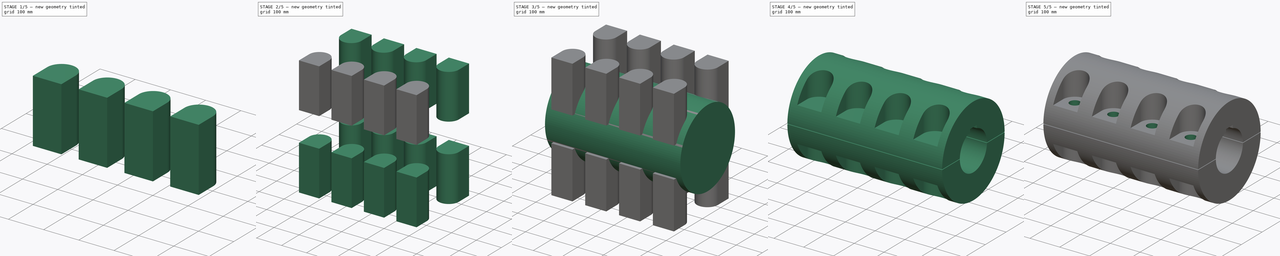
[diagram: build sequence overview — one tinted view per stage of 5, left to right]
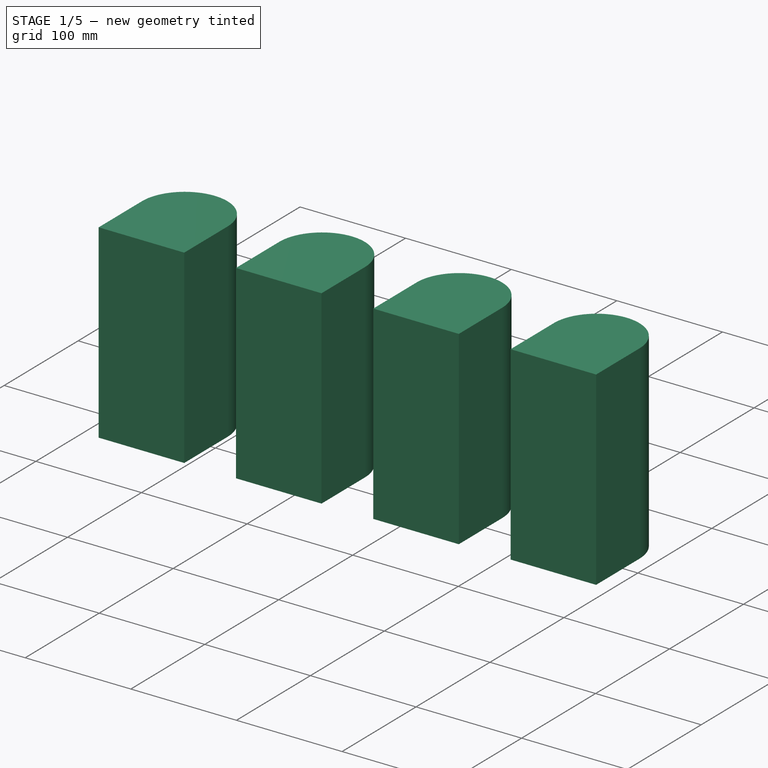
[diagram: stage 1 of 5 — iso view after this stage's code; geometry added in this stage tinted green]
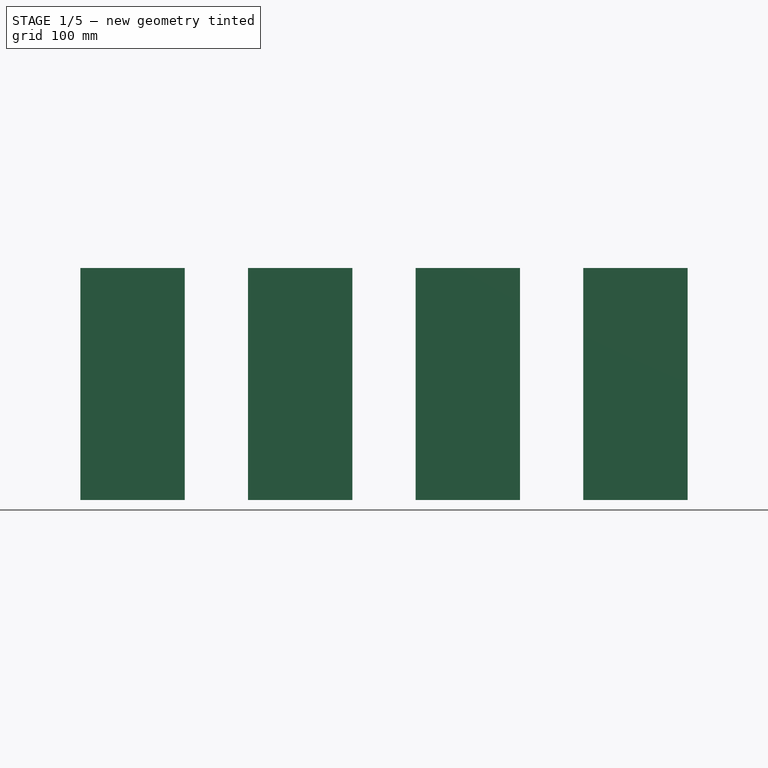
[diagram: stage 1 of 5 — front view after this stage's code; geometry added in this stage tinted green]
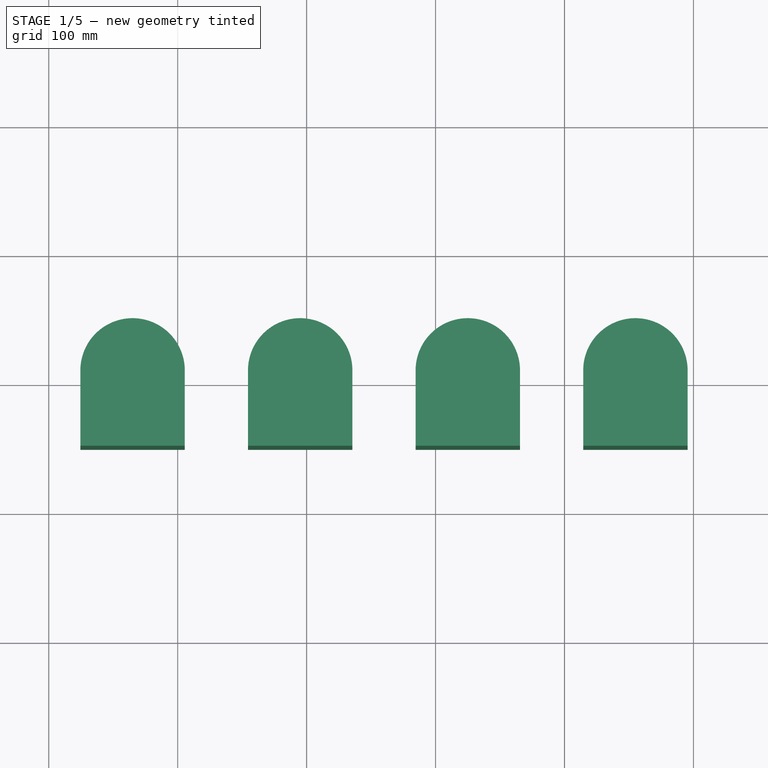
[diagram: stage 1 of 5 — top view after this stage's code; geometry added in this stage tinted green]
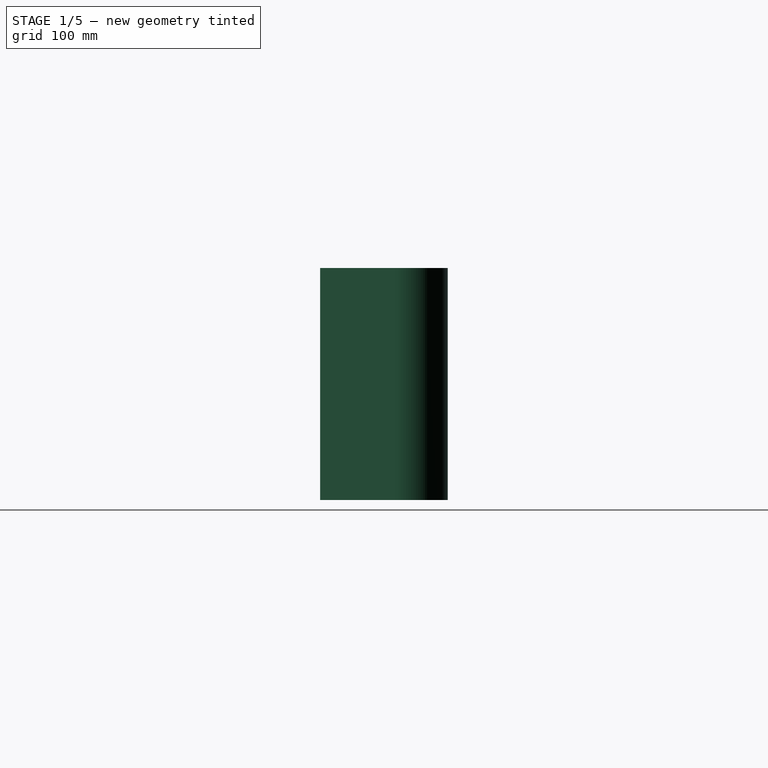
[diagram: stage 1 of 5 — right view after this stage's code; geometry added in this stage tinted green]
FCSTD DOCUMENT  (FreeCAD 0.21R33771 (Git))
Label: 筒形軸継手
License: All rights reserved
objects: Part::FeaturePython×4, Part::Extrusion×4, Part::Cut×4, Sketcher::SketchObject×3, Part::Mirroring×2, Part::MultiFuse×2, Spreadsheet::Sheet×1, App::Part×1
note: 19 computed .brp shape members not serialized (recipe doc carries the construction recipe); baked Part::Feature solids carry a one-line shape summary decoded from their .brp

FEATURE [Sketcher::SketchObject] Sketch001
  FullyConstrained = true
  Placement = pos=(0,0,59) rot=(0,0,1;0rad)
  expr: .Placement.Base.z = Spreadsheet.C0 + Spreadsheet.E / 2
  expr: Constraints[10] = Spreadsheet.F0
  expr: Constraints[6] = Spreadsheet.A0 / 2
  expr: Constraints[8] = Spreadsheet.H0
  expr: Constraints[9] = Spreadsheet.D / 2
  sketch-geometry (4):
    g0: LineSegment StartX=24.5 StartY=150 StartZ=0 EndX=24.5 EndY=91.5 EndZ=0
    g1: ArcOfCircle CenterX=65 CenterY=91.5 CenterZ=0 NormalX=0 NormalY=0 NormalZ=1 AngleXU=0 Radius=40.5 StartAngle=3.14159 EndAngle=6.28319
    g2: LineSegment StartX=105.5 StartY=91.5 StartZ=0 EndX=105.5 EndY=150 EndZ=0
    g3: LineSegment StartX=105.5 StartY=150 StartZ=0 EndX=24.5 EndY=150 EndZ=0
  constraints (11):
    c: Vertical(g0)
    c: Tangent(g0,g1) = -1.5708
    c: Coincident(g2,g3)
    c: Coincident(g3,g0)
    c: Horizontal(g3)
    c: Vertical(g2)
    c: DistanceY(g-1,g1) = 91.5
    c: Tangent(g1,g2) = -1.5708
    c: DistanceX(g3,g3) = 81
    c: DistanceY(g-1,g0) = 150
    c: DistanceX(g-1,g1) = 65
FEATURE [Part::Extrusion] Extrude002
  Base = -> Sketch001
  Dir = (0,0,1)
  DirMode = 2
  FaceMakerClass = Part::FaceMakerBullseye
  LengthFwd = 180
  LengthRev = 0
  Solid = true
  Symmetric = false
  expr: LengthFwd = Spreadsheet.D * 0.6
FEATURE [Spreadsheet::Sheet] Spreadsheet
  cells = B2=130; A3='d; B3(d)=130; A4='D; B4(D)=300; A5='L; B5(L)=520; A6='A0; B6(A0)=183; A7='B; B7(B)=101; A8='C0; B8(C0)=58; A9='E; B9(E)=2; A10='F0; B10(F0)=65; A11='G0; B11(G0)=130; A12='H0; B12(H0)=81; A13='S0; B13(S0)=35; A14='BoltNo; B14(BoltNo)=8; A15='BoltSize; B15(BoltSize)='M32; A16='BoltL; B16(BoltL)==2 * B8 + B9 + B13
FEATURE [Part::FeaturePython] Array  # Draft array (typed FeaturePython)
  Angle = 360
  ArrayType = 0
  Axis = (0,0,1)
  Base = -> Extrude002
  Center = (0,0,0)
  Count = 4
  Fuse = false
  IntervalAxis = (0,0,0)
  IntervalX = (130,0,0)
  IntervalY = (0,1,0)
  IntervalZ = (0,0,50)
  NumberCircles = 3
  NumberPolar = 5
  NumberX = 4
  NumberY = 1
  NumberZ = 1
  RadialDistance = 50
  Symmetry = 1
  TangentialDistance = 25
  expr: .IntervalX.x = Spreadsheet.G0
  expr: NumberX = Spreadsheet.BoltNo / 2
FEATURE [Part::Mirroring] mirror  label="Array (mirrored) "
  Base = (-1000,0,0)
  Normal = (0,-1,0)
  Source = -> Array
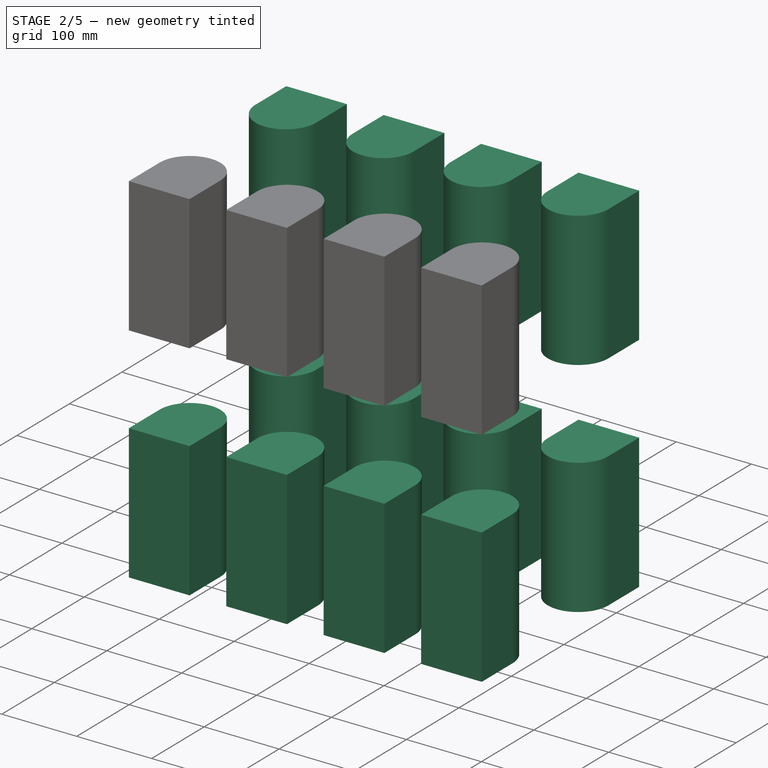
[diagram: stage 2 of 5 — iso view after this stage's code; geometry added in this stage tinted green]
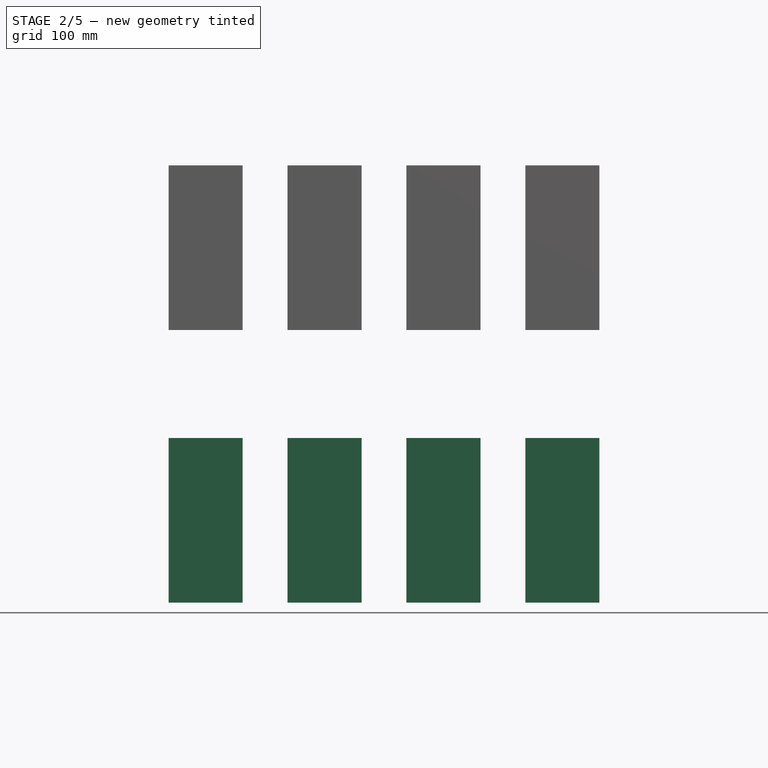
[diagram: stage 2 of 5 — front view after this stage's code; geometry added in this stage tinted green]
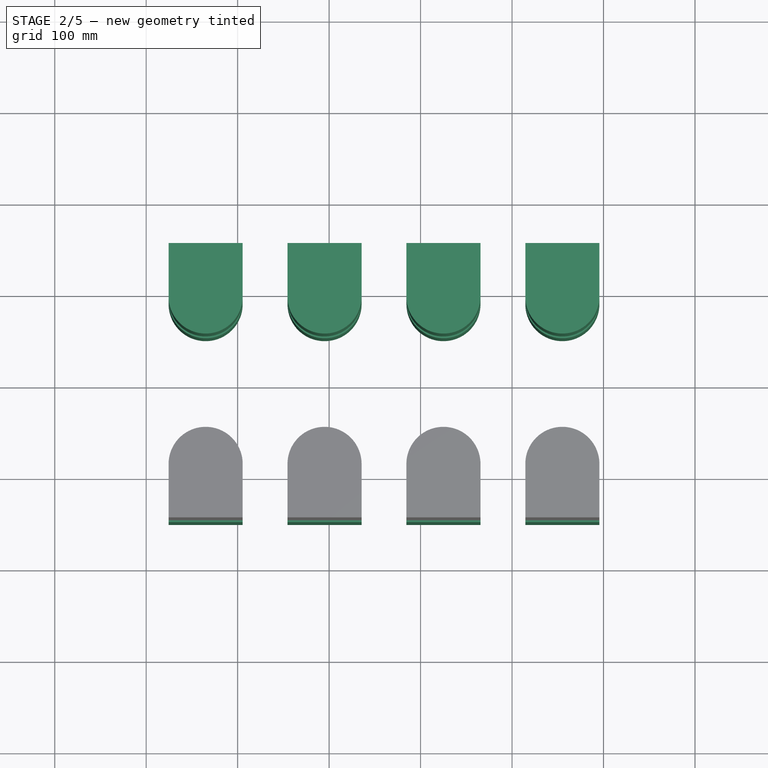
[diagram: stage 2 of 5 — top view after this stage's code; geometry added in this stage tinted green]
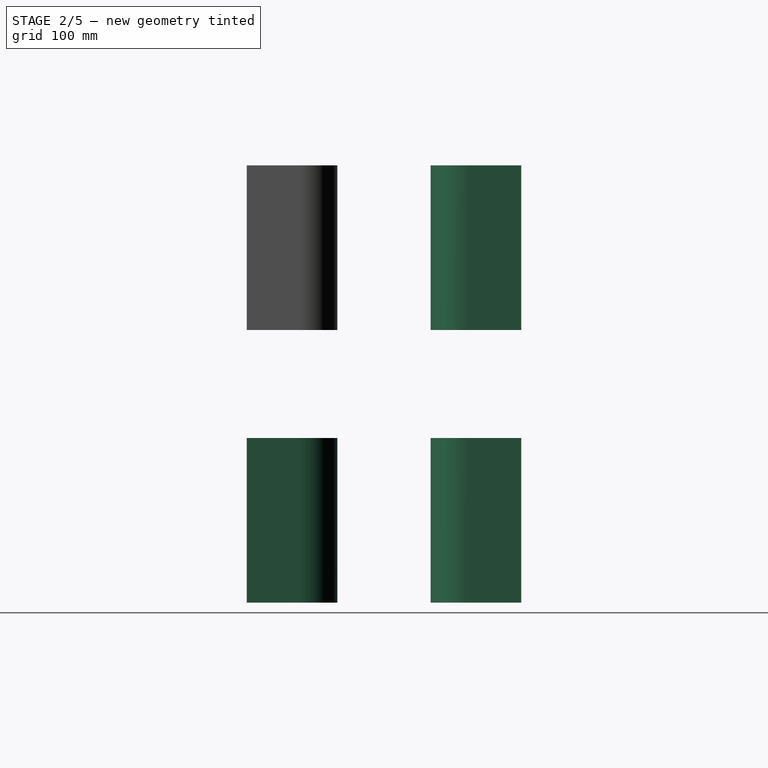
[diagram: stage 2 of 5 — right view after this stage's code; geometry added in this stage tinted green]
FEATURE [Part::MultiFuse] Fusion
  Shapes = -> [mirror,Array]
FEATURE [Part::Mirroring] mirror001  label="Fusion (mirrored) "
  Base = (-1000,0,0)
  Normal = (0,0,-1)
  Source = -> Fusion
FEATURE [Part::MultiFuse] Fusion001
  Shapes = -> [mirror001,Fusion]
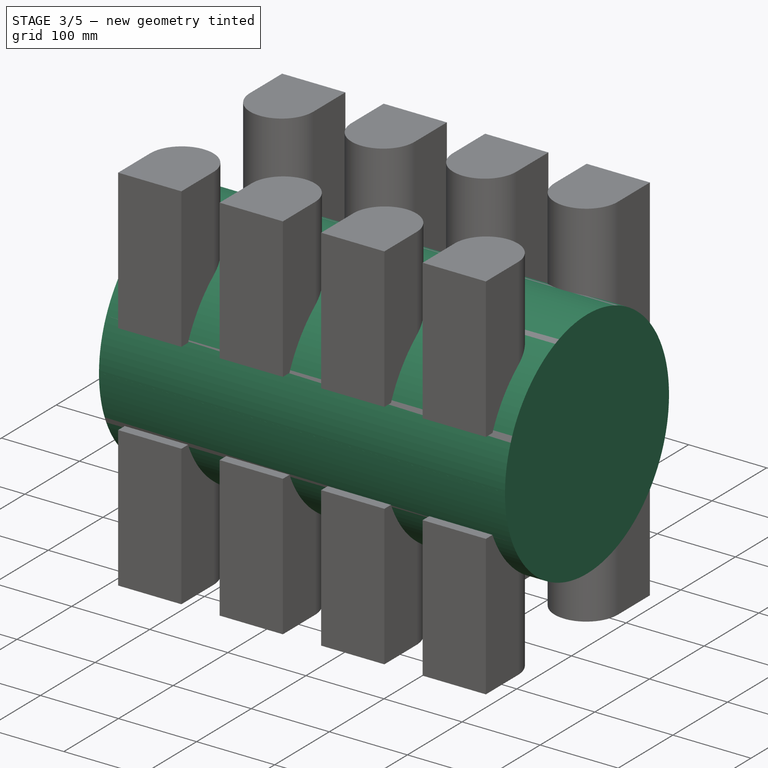
[diagram: stage 3 of 5 — iso view after this stage's code; geometry added in this stage tinted green]
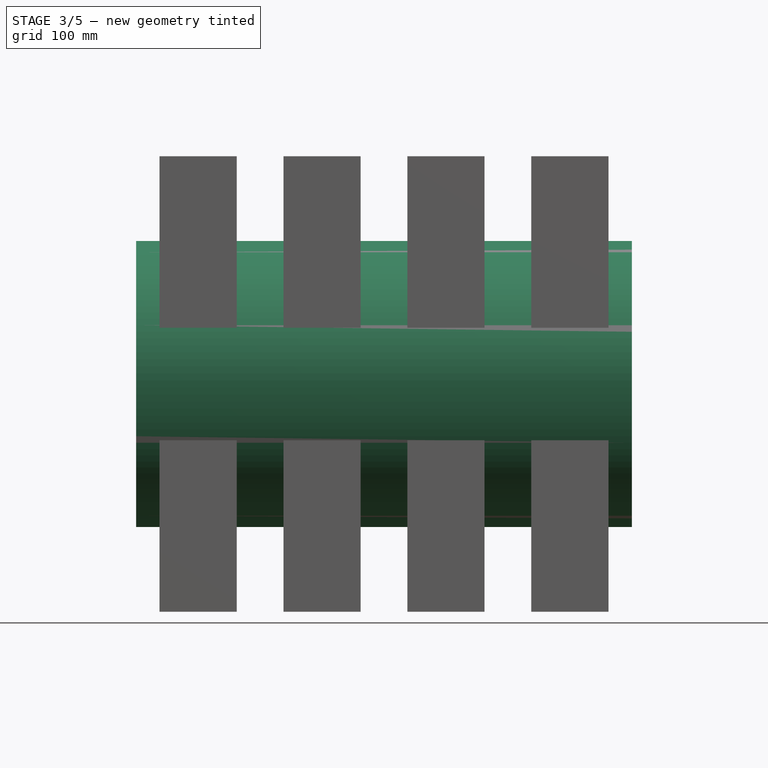
[diagram: stage 3 of 5 — front view after this stage's code; geometry added in this stage tinted green]
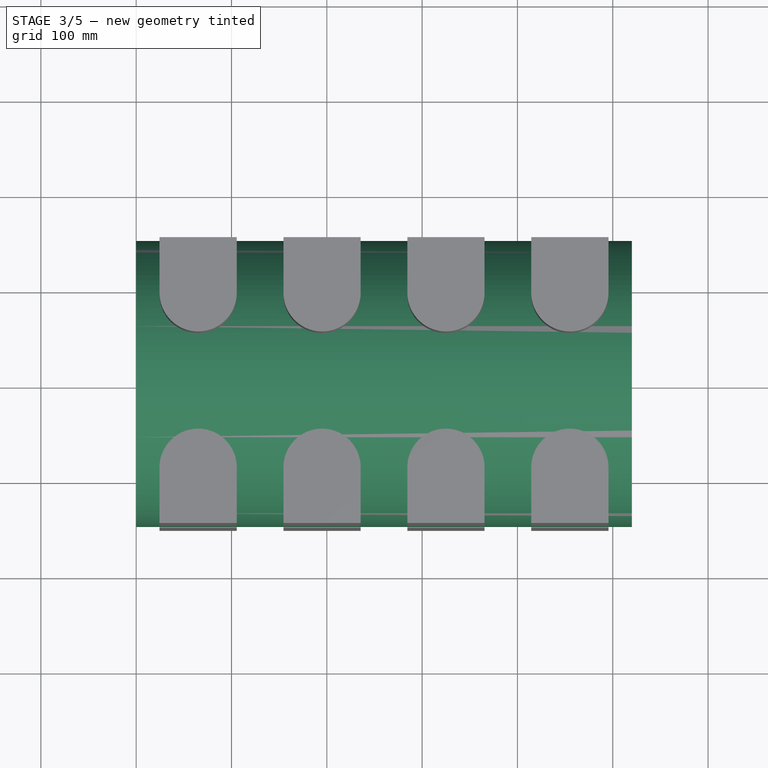
[diagram: stage 3 of 5 — top view after this stage's code; geometry added in this stage tinted green]
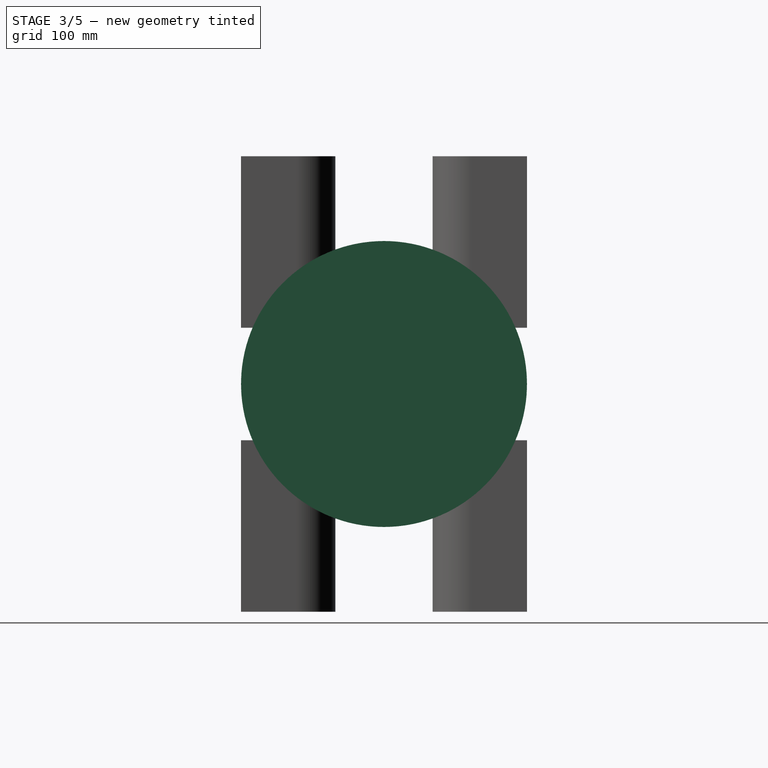
[diagram: stage 3 of 5 — right view after this stage's code; geometry added in this stage tinted green]
FEATURE [Part::FeaturePython] __basic  # WARN: FeaturePython — macro-defined, semantics opaque (R4)
  D = 300
  I = 32460.7
  L = 520
  g0 = 7.85
  mass = 288.54
  type = 0_basic
  expr: D = Spreadsheet.D
  expr: L = Spreadsheet.L
FEATURE [Part::FeaturePython] __keyway_boss  # WARN: FeaturePython — macro-defined, semantics opaque (R4)
  D = 130
  g0 = 7.85
  mass = 0
  expr: D = Spreadsheet.d
FEATURE [Part::Extrusion] Extrude
  Base = -> __keyway_boss
  Dir = (1,0,0)
  DirMode = 2
  FaceMakerClass = Part::FaceMakerBullseye
  LengthFwd = 520
  LengthRev = 0
  Solid = false
  Symmetric = false
  expr: LengthFwd = Spreadsheet.L
FEATURE [Sketcher::SketchObject] Sketch
  FullyConstrained = true
  Placement = pos=(0,0,0) rot=(0.57735,-0.57735,-0.57735;2.0944rad)
  expr: Constraints[10] = Spreadsheet.E
  expr: Constraints[9] = Spreadsheet.D
  sketch-geometry (4):
    g0: LineSegment StartX=-150 StartY=-1 StartZ=0 EndX=150 EndY=-1 EndZ=0
    g1: LineSegment StartX=150 StartY=-1 StartZ=0 EndX=150 EndY=1 EndZ=0
    g2: LineSegment StartX=150 StartY=1 StartZ=0 EndX=-150 EndY=1 EndZ=0
    g3: LineSegment StartX=-150 StartY=1 StartZ=0 EndX=-150 EndY=-1 EndZ=0
  constraints (11):
    c: Coincident(g0,g1)
    c: Coincident(g1,g2)
    c: Coincident(g2,g3)
    c: Coincident(g3,g0)
    c: Horizontal(g0)
    c: Horizontal(g2)
    c: Vertical(g1)
    c: Vertical(g3)
    c: Symmetric(g1,g0,g-1)
    c: DistanceX(g2,g2) = 300
    c: DistanceY(g3,g3) = 2
FEATURE [Part::Extrusion] Extrude001
  Base = -> Sketch
  Dir = (-1,0,0)
  DirMode = 2
  FaceMakerClass = Part::FaceMakerBullseye
  LengthFwd = 520
  LengthRev = 0
  Reversed = true
  Solid = true
  Symmetric = false
  expr: LengthFwd = Spreadsheet.L
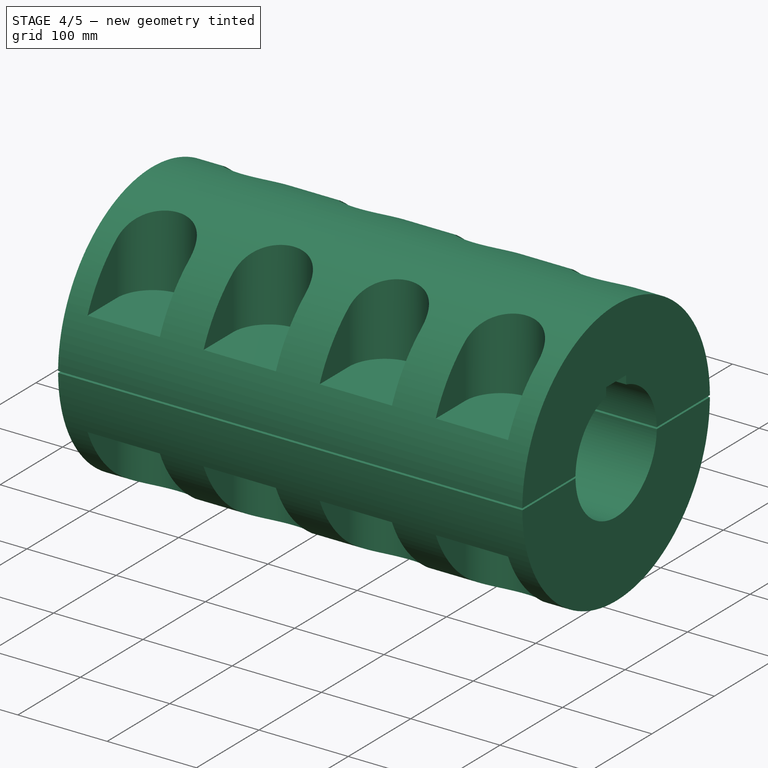
[diagram: stage 4 of 5 — iso view after this stage's code; geometry added in this stage tinted green]
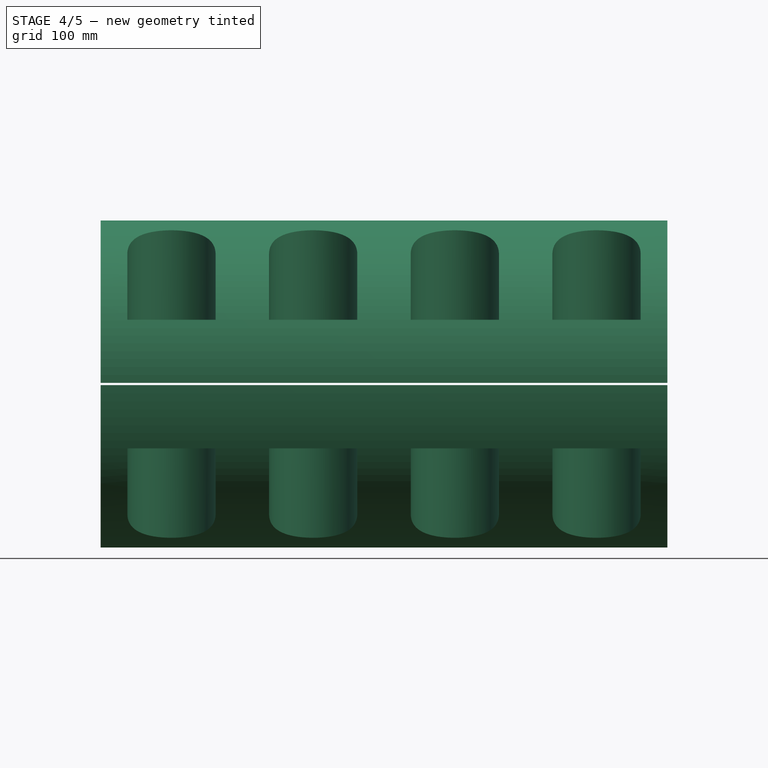
[diagram: stage 4 of 5 — front view after this stage's code; geometry added in this stage tinted green]
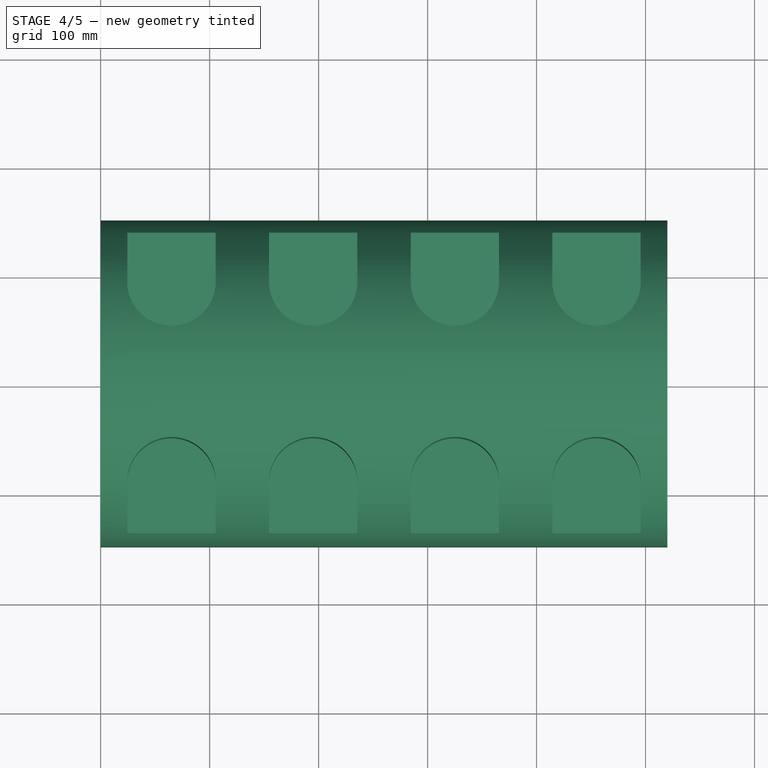
[diagram: stage 4 of 5 — top view after this stage's code; geometry added in this stage tinted green]
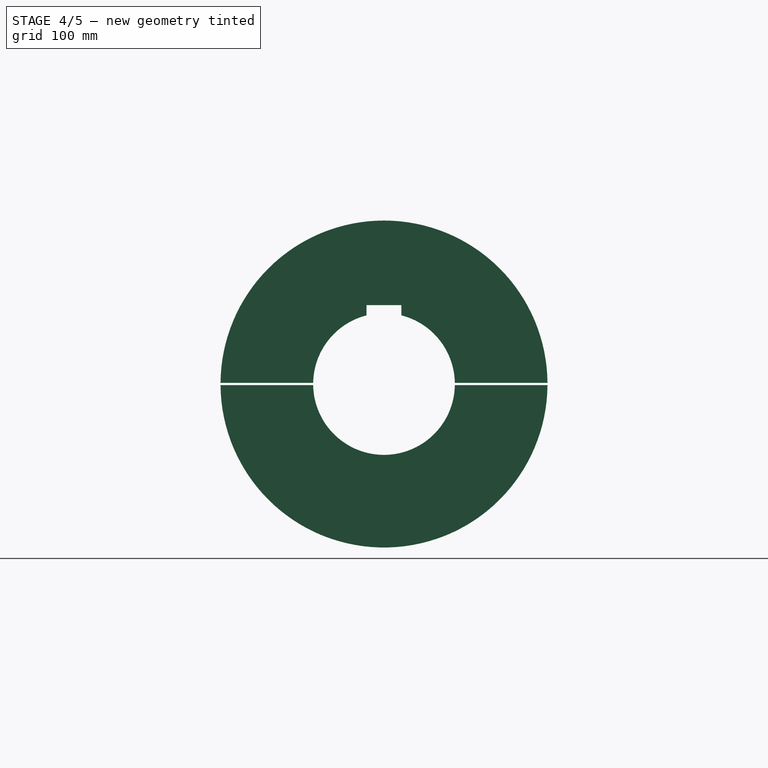
[diagram: stage 4 of 5 — right view after this stage's code; geometry added in this stage tinted green]
FEATURE [Part::Cut] Cut
  Base = -> __basic
  Tool = -> Extrude
FEATURE [Part::Cut] Cut001
  Base = -> Cut
  Tool = -> Extrude001
FEATURE [Part::Cut] Cut002
  Base = -> Cut001
  Tool = -> Fusion001
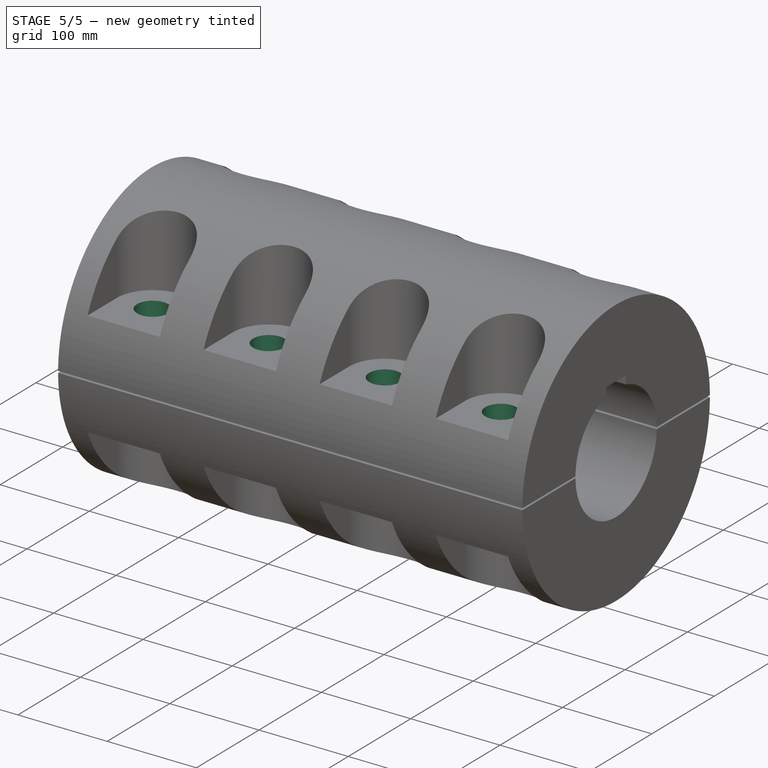
[diagram: stage 5 of 5 — iso view after this stage's code; geometry added in this stage tinted green]
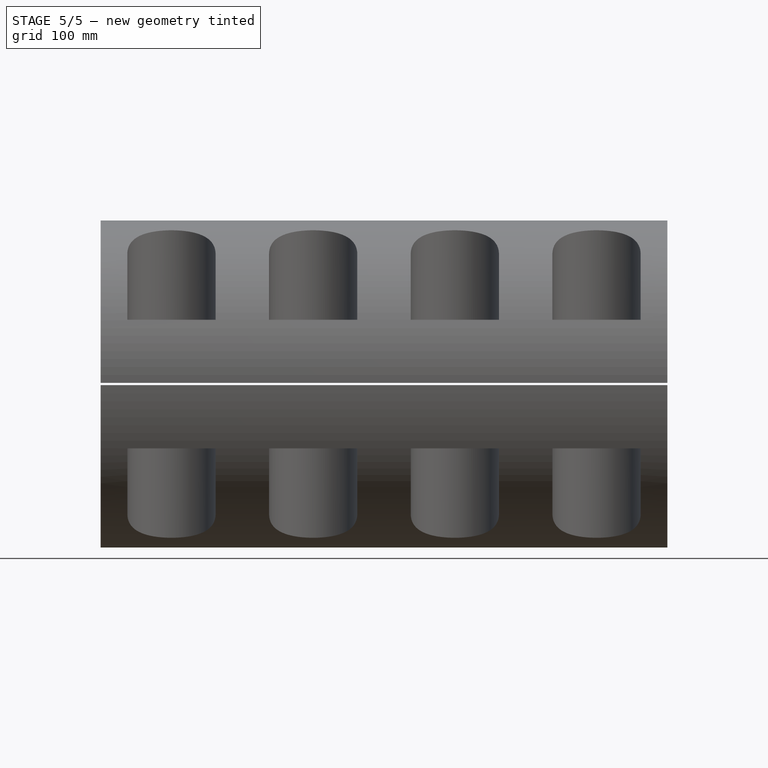
[diagram: stage 5 of 5 — front view after this stage's code; geometry added in this stage tinted green]
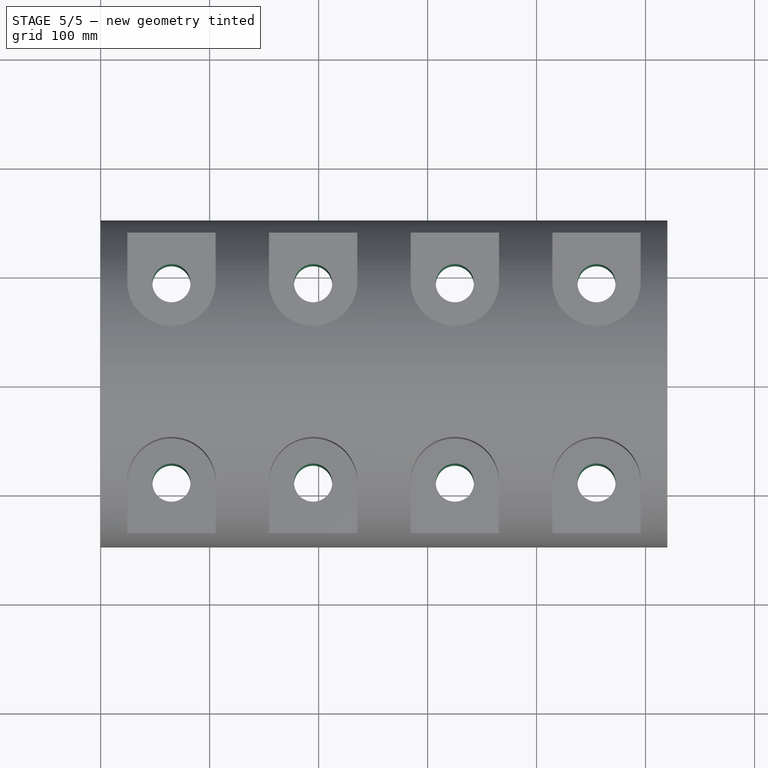
[diagram: stage 5 of 5 — top view after this stage's code; geometry added in this stage tinted green]
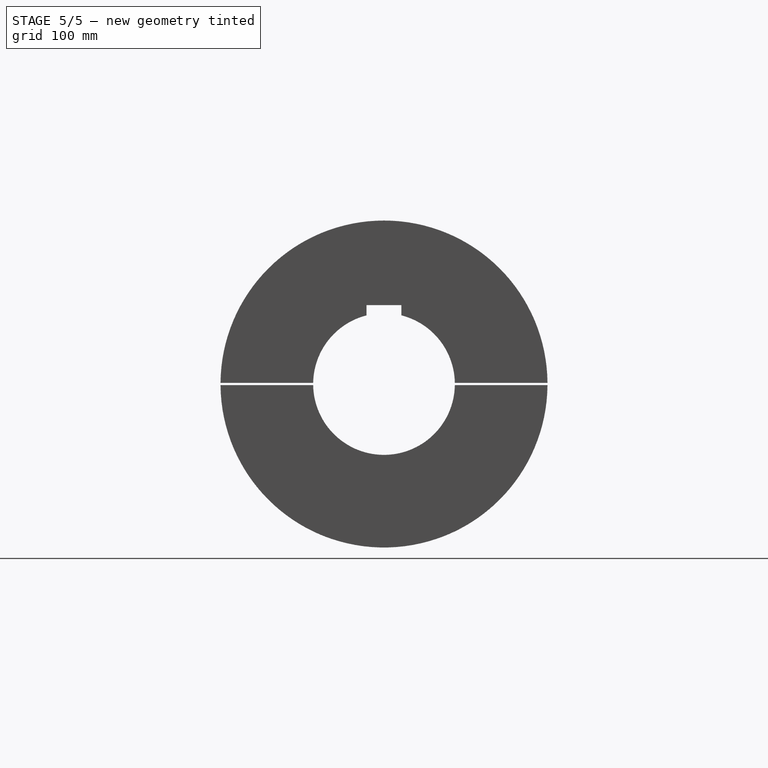
[diagram: stage 5 of 5 — right view after this stage's code; geometry added in this stage tinted green]
FEATURE [Sketcher::SketchObject] Sketch002
  FullyConstrained = true
  expr: Constraints[0] = Spreadsheet.F0
  expr: Constraints[1] = Spreadsheet.S0
  expr: Constraints[2] = Spreadsheet.A0 / 2
  sketch-geometry (1):
    g0: Circle CenterX=65 CenterY=91.5 CenterZ=0 NormalX=0 NormalY=0 NormalZ=1 AngleXU=0 Radius=17.5
  constraints (3):
    c: DistanceX(g-1,g0) = 65
    c: Diameter(g0) = 35
    c: DistanceY(g-1,g0) = 91.5
FEATURE [Part::Extrusion] Extrude003
  Base = -> Sketch002
  Dir = (0,0,1)
  DirMode = 2
  FaceMakerClass = Part::FaceMakerBullseye
  LengthFwd = 118
  LengthRev = 0
  Solid = true
  Symmetric = true
  expr: LengthFwd = Spreadsheet.C0 * 2 + Spreadsheet.E
FEATURE [Part::FeaturePython] Array001  label="BoltHoles"  # Draft array (typed FeaturePython)
  Angle = 360
  ArrayType = 0
  Axis = (0,0,1)
  Base = -> Extrude003
  Center = (0,0,0)
  Count = 16
  Fuse = false
  IntervalAxis = (0,0,0)
  IntervalX = (130,0,0)
  IntervalY = (0,-183,0)
  IntervalZ = (0,0,59)
  NumberCircles = 3
  NumberPolar = 5
  NumberX = 8
  NumberY = 2
  NumberZ = 1
  RadialDistance = 50
  Symmetry = 1
  TangentialDistance = 25
  expr: .IntervalX.x = Spreadsheet.G0
  expr: .IntervalY.y = -Spreadsheet.A0
  expr: .IntervalZ.z = Spreadsheet.C0 + Spreadsheet.E / 2
  expr: NumberX = Spreadsheet.BoltNo
FEATURE [Part::Cut] Cut003  label="SplitTubeJoint"
  Base = -> Cut002
  Tool = -> Array001
FEATURE [App::Part] Part  label="筒割形継手"
  Group = -> [__keyway_boss,Sketch001,Array001,__basic,Extrude001,Extrude002,Extrude003,Extrude,Cut,Cut001,Sketch,Sketch002,Spreadsheet,Array,mirror,Fusion,mirror001,Fusion001,Cut002,Cut003]
  Origin = -> Origin
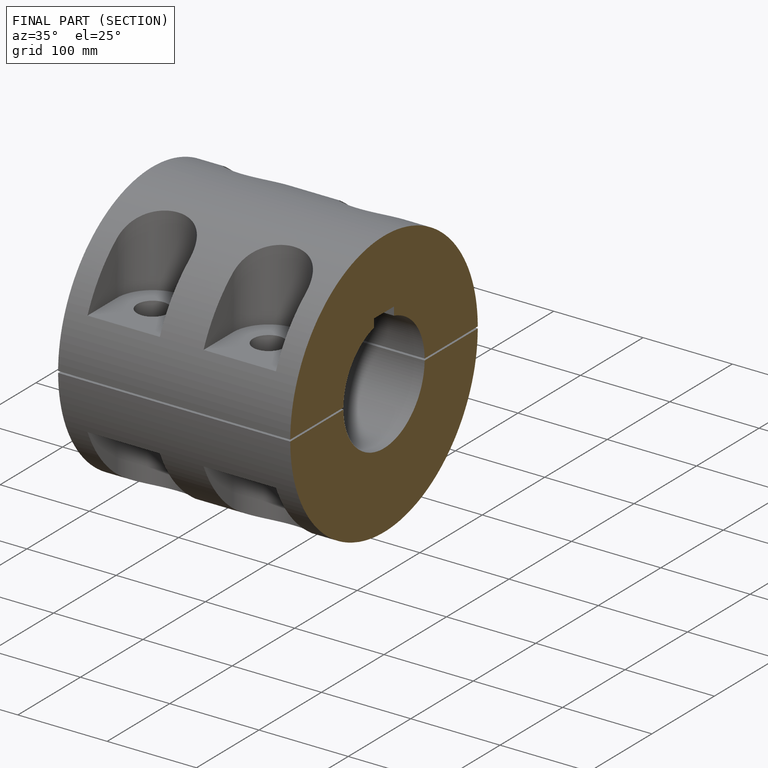
[diagram: finished part — half-section view (interior)]
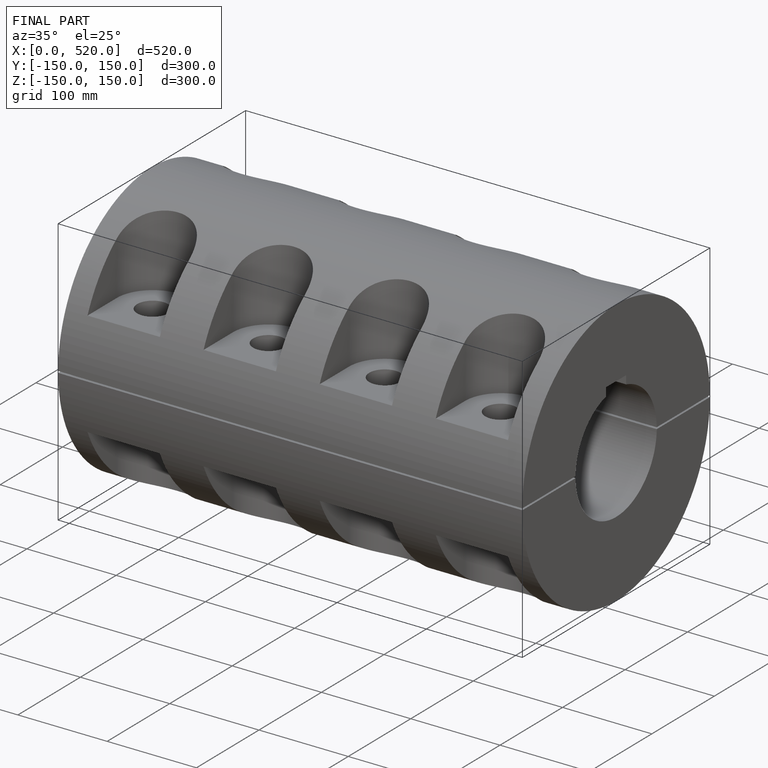
[diagram: finished part — iso view with bounding-box wireframe]
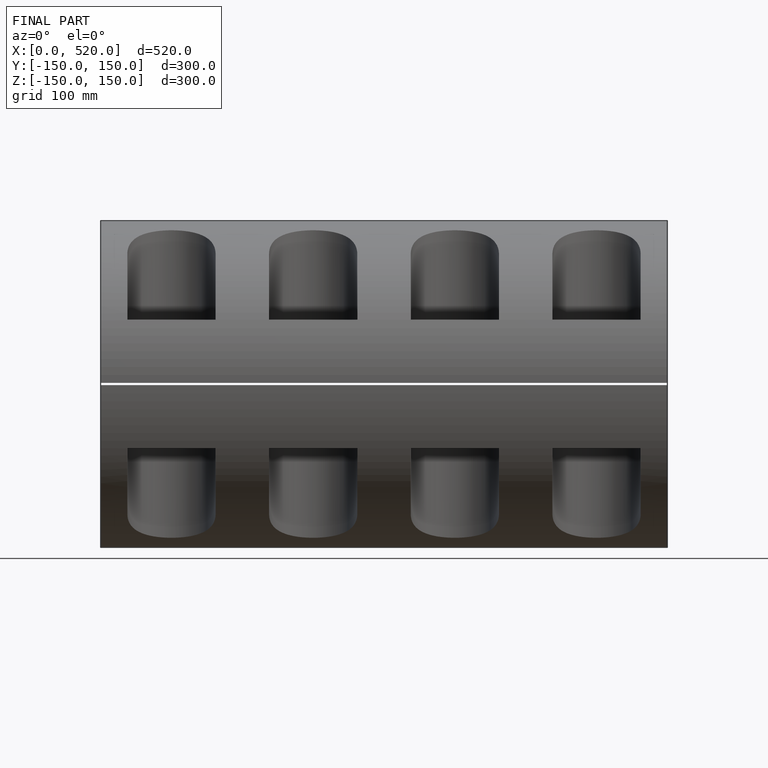
[diagram: finished part — front view with bounding-box wireframe]
